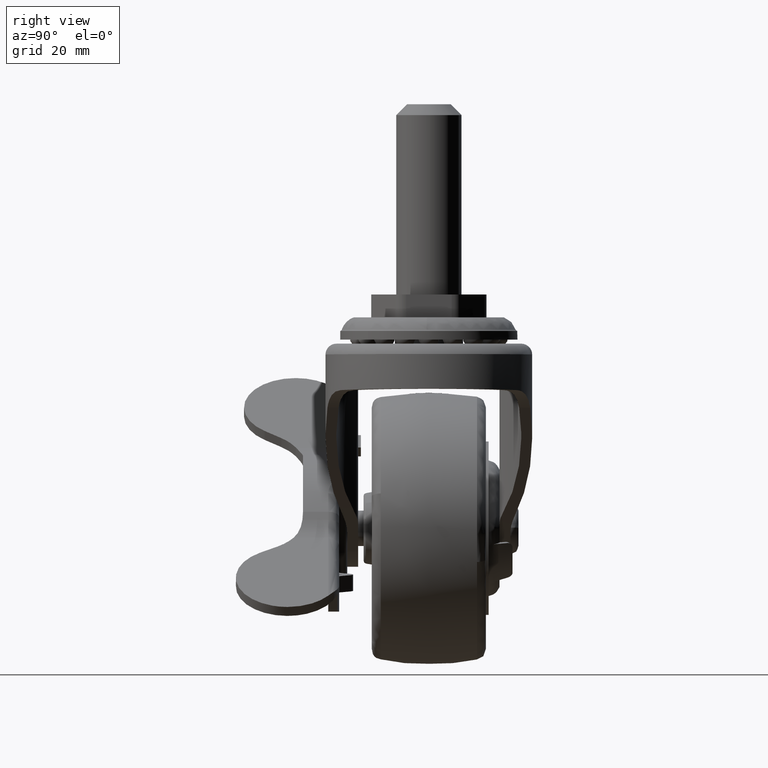
[diagram: clean part render]
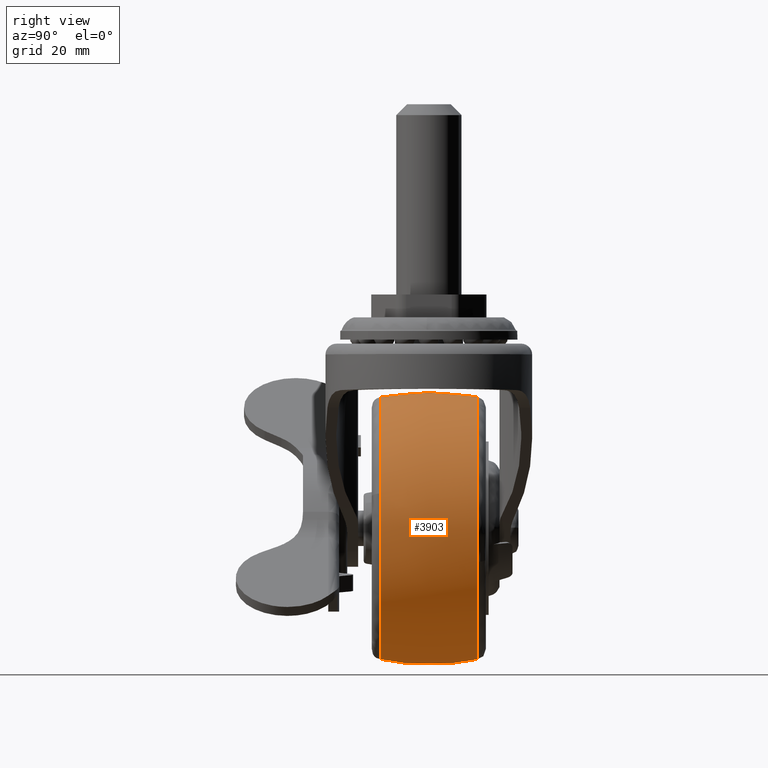
[diagram: same view with one face highlighted and labeled with its STEP entity id]
A machine part, right view. The second image highlights one B-rep face of the part: STEP entity #3903.
In plain terms, the highlighted face is a freeform B-spline surface patch.
Its self-contained STEP definition (entity closure, byte-faithful):
#2918=CARTESIAN_POINT('',(0.0,8.854156047555167,24.209794966911090));
#2919=VERTEX_POINT('',#2918);
#2936=CARTESIAN_POINT('',(22.624161666785600,8.854163295007293,-8.617506265218722));
#2937=VERTEX_POINT('',#2936);
#2938=CARTESIAN_POINT('',(22.624161666785600,8.854163295007293,-8.617506265218722));
#2939=CARTESIAN_POINT('',(23.210569897348549,8.854162949816164,-7.078731616835248));
#2940=CARTESIAN_POINT('',(23.781632398002099,8.854162472384191,-4.946888367958590));
#2941=CARTESIAN_POINT('',(24.187590928186399,8.854161755292967,-1.738187971417307));
#2942=CARTESIAN_POINT('',(24.273890034268859,8.854161060011808,1.377495455569645));
#2943=CARTESIAN_POINT('',(23.801370737152592,8.854160262262095,4.960865878064975));
#2944=CARTESIAN_POINT('',(22.683640342113250,8.854159429869460,8.709145278768519));
#2945=CARTESIAN_POINT('',(21.310396390163600,8.854158778953130,11.647663186561440));
#2946=CARTESIAN_POINT('',(19.554869142693551,8.854158178153694,14.367197077275939));
#2947=CARTESIAN_POINT('',(17.803576605142560,8.854157710976985,16.487630376303439));
#2948=CARTESIAN_POINT('',(15.420643692488859,8.854157210289607,18.767695878696671));
#2949=CARTESIAN_POINT('',(12.836212087506240,8.854156804269309,20.626366111123609));
#2950=CARTESIAN_POINT('',(9.530819152936433,8.854156431470374,22.346832661731590));
#2951=CARTESIAN_POINT('',(6.236808025049291,8.854156185536390,23.498390634917321));
#2952=CARTESIAN_POINT('',(2.866466264389453,8.854156061805130,24.103247948581970));
#2953=CARTESIAN_POINT('',(0.853841159247874,8.854156044718648,24.209801587139989));
#2954=CARTESIAN_POINT('',(0.0,8.854156047555167,24.209794966911090));
#2955=B_SPLINE_CURVE_WITH_KNOTS('',3,(#2938,#2939,#2940,#2941,#2942,#2943,#2944,#2945,#2946,#2947,#2948,#2949,#2950,#2951,#2952,#2953,#2954),.UNSPECIFIED.,.F.,.U.,(4,1,1,1,1,1,1,1,1,1,1,1,1,1,4),(0.000000030441655,4.940100022930345,6.586799404720615,9.697236326508254,14.271406719354630,17.381841161697100,21.407128963643810,23.968607178481669,27.079050260558770,29.640587552486839,33.848843533769767,36.593350707649499,40.801596595943643,44.277948844904067,46.839480648700693),.UNSPECIFIED.);
#2956=EDGE_CURVE('',#2937,#2919,#2955,.T.);
#3012=CARTESIAN_POINT('',(0.0,8.854166545756531,-24.209793078004349));
#3013=VERTEX_POINT('',#3012);
#3014=CARTESIAN_POINT('',(0.0,8.854166545756531,-24.209793078004349));
#3015=CARTESIAN_POINT('',(1.065230558824804,8.854166545761252,-24.209815701946830));
#3016=CARTESIAN_POINT('',(3.423972397751132,8.854166513260488,-24.053925209390709));
#3017=CARTESIAN_POINT('',(6.856582042393287,8.854166359129399,-23.314632096348451));
#3018=CARTESIAN_POINT('',(10.101090902239619,8.854166102182287,-22.082179851005510));
#3019=CARTESIAN_POINT('',(13.116350960653520,8.854165760915748,-20.445287706734540));
#3020=CARTESIAN_POINT('',(15.597780168761060,8.854165376706691,-18.602420851504661));
#3021=CARTESIAN_POINT('',(17.876089172291309,8.854164919715389,-16.410453121212139));
#3022=CARTESIAN_POINT('',(19.592921975826780,8.854164483250100,-14.316937925483870));
#3023=CARTESIAN_POINT('',(21.296345712938841,8.854163927971532,-11.653532239671479));
#3024=CARTESIAN_POINT('',(22.177348119370951,8.854163539613044,-9.790763084758684));
#3025=CARTESIAN_POINT('',(22.624161666785600,8.854163295007293,-8.617506265218722));
#3026=B_SPLINE_CURVE_WITH_KNOTS('',3,(#3014,#3015,#3016,#3017,#3018,#3019,#3020,#3021,#3022,#3023,#3024,#3025),.UNSPECIFIED.,.F.,.U.,(4,1,1,1,1,1,1,1,1,4),(0.000000030008625,3.195696905006013,7.076225998695346,10.500213562448760,13.581796867616070,17.348148363645429,19.744953546908601,23.054803005073719,25.451604816612530,29.217967931808701),.UNSPECIFIED.);
#3027=EDGE_CURVE('',#3013,#2937,#3026,.T.);
#3029=CARTESIAN_POINT('',(-24.047871854378428,8.854171186964070,2.795335350209184));
#3030=VERTEX_POINT('',#3029);
#3031=CARTESIAN_POINT('',(-24.047871854378428,8.854171186964070,2.795335350209184));
#3032=CARTESIAN_POINT('',(-24.170672598969610,8.854171096208699,1.739173012377101));
#3033=CARTESIAN_POINT('',(-24.282123010860580,8.854170891490963,-0.495798398120823));
#3034=CARTESIAN_POINT('',(-23.971234645595839,8.854170529052972,-4.000104140513172));
#3035=CARTESIAN_POINT('',(-23.020428787821078,8.854170075483649,-7.885298097810547));
#3036=CARTESIAN_POINT('',(-21.449909984583329,8.854169599382228,-11.453710534030540));
#3037=CARTESIAN_POINT('',(-19.505350359540412,8.854169146446081,-14.447368198761710));
#3038=CARTESIAN_POINT('',(-17.753096418728461,8.854168797950235,-16.522695160875749));
#3039=CARTESIAN_POINT('',(-15.608637736282180,8.854168416571287,-18.591822420827441));
#3040=CARTESIAN_POINT('',(-12.832307372416849,8.854167980479408,-20.669065856569510));
#3041=CARTESIAN_POINT('',(-9.074885127435428,8.854167476328064,-22.582688227919999));
#3042=CARTESIAN_POINT('',(-4.731528381452085,8.854166979929099,-23.893661538220300));
#3043=CARTESIAN_POINT('',(-1.648110505793533,8.854166686410856,-24.210040810317199));
#3044=CARTESIAN_POINT('',(0.0,8.854166545756531,-24.209793078004349));
#3045=B_SPLINE_CURVE_WITH_KNOTS('',3,(#3031,#3032,#3033,#3034,#3035,#3036,#3037,#3038,#3039,#3040,#3041,#3042,#3043,#3044),.UNSPECIFIED.,.F.,.U.,(4,1,1,1,1,1,1,1,1,1,1,4),(0.000000050354494,3.189835928459068,6.698707134197946,10.526565867136309,15.151883392004841,18.341772885132851,21.212618518764021,23.286018045957132,27.273357188577531,31.579698744170461,35.886038136260147,40.830311430089772),.UNSPECIFIED.);
#3046=EDGE_CURVE('',#3030,#3013,#3045,.T.);
#3095=CARTESIAN_POINT('',(6.669224912788078,-8.854166519641836,-23.273064930118039));
#3096=VERTEX_POINT('',#3095);
#3097=CARTESIAN_POINT('',(23.887463614547560,-8.854162321415831,3.937412292919604));
#3098=VERTEX_POINT('',#3097);
#3099=CARTESIAN_POINT('',(6.669224912788078,-8.854166519641836,-23.273064930118039));
#3100=CARTESIAN_POINT('',(8.080264711610443,-8.854166453478081,-22.868851505163541));
#3101=CARTESIAN_POINT('',(10.527824939294630,-8.854166300890665,-21.919225267015101));
#3102=CARTESIAN_POINT('',(13.618850987927830,-8.854166013785196,-20.099713202486690));
#3103=CARTESIAN_POINT('',(15.864641416455150,-8.854165739591291,-18.346769969219199));
#3104=CARTESIAN_POINT('',(17.945628110026529,-8.854165426917245,-16.337450979810889));
#3105=CARTESIAN_POINT('',(19.746513227422479,-8.854165084469177,-14.126463279844661));
#3106=CARTESIAN_POINT('',(21.362749012695389,-8.854164680419872,-11.506765847019439));
#3107=CARTESIAN_POINT('',(22.702631252370761,-8.854164238643284,-8.633228437494205));
#3108=CARTESIAN_POINT('',(23.658817114511450,-8.854163760016775,-5.509296474596037));
#3109=CARTESIAN_POINT('',(24.162313149790108,-8.854163267651057,-2.285317139693413));
#3110=CARTESIAN_POINT('',(24.263032693540019,-8.854162798977562,0.791706131691230));
#3111=CARTESIAN_POINT('',(24.066550868320409,-8.854162486148672,2.851236399399517));
#3112=CARTESIAN_POINT('',(23.887463614547560,-8.854162321415831,3.937412292919604));
#3113=B_SPLINE_CURVE_WITH_KNOTS('',3,(#3099,#3100,#3101,#3102,#3103,#3104,#3105,#3106,#3107,#3108,#3109,#3110,#3111,#3112),.UNSPECIFIED.,.F.,.U.,(4,1,1,1,1,1,1,1,1,1,1,4),(0.000000045466521,4.403368261571281,7.843531434918518,10.733255525369829,12.934958475661400,16.512731122614490,19.264794149923109,22.154518466834560,26.007498810574390,29.034837871654581,31.924569960631359,35.227088411384187),.UNSPECIFIED.);
#3114=EDGE_CURVE('',#3096,#3098,#3113,.T.);
#3196=CARTESIAN_POINT('',(0.0,-8.854166661830259,-24.209793723120299));
#3197=VERTEX_POINT('',#3196);
#3198=CARTESIAN_POINT('',(0.0,-8.854166661830259,-24.209793723120299));
#3199=CARTESIAN_POINT('',(1.055719922121602,-8.854166661835818,-24.209830481906369));
#3200=CARTESIAN_POINT('',(3.307906369467236,-8.854166639431519,-24.062231758162181));
#3201=CARTESIAN_POINT('',(5.519055733522833,-8.854166569683736,-23.602738201434160));
#3202=CARTESIAN_POINT('',(6.669224912788078,-8.854166519641836,-23.273064930118039));
#3203=B_SPLINE_CURVE_WITH_KNOTS('',3,(#3198,#3199,#3200,#3201,#3202),.UNSPECIFIED.,.F.,.U.,(4,1,4),(1.399075E-009,3.167157438084686,6.756599511746928),.UNSPECIFIED.);
#3204=EDGE_CURVE('',#3197,#3096,#3203,.T.);
#3273=CARTESIAN_POINT('',(0.0,-8.854159093551591,24.209794918354810));
#3274=VERTEX_POINT('',#3273);
#3275=CARTESIAN_POINT('',(23.887463614547560,-8.854162321415831,3.937412292919604));
#3276=CARTESIAN_POINT('',(23.714331435484869,-8.854162154130005,4.988039594110561));
#3277=CARTESIAN_POINT('',(23.269515118372290,-8.854161850784280,6.893182049004223));
#3278=CARTESIAN_POINT('',(22.293634059204109,-8.854161425481832,9.564264774376580));
#3279=CARTESIAN_POINT('',(21.089733564179149,-8.854161038814933,11.992700556155819));
#3280=CARTESIAN_POINT('',(19.523767041050750,-8.854160652317917,14.420068843163090));
#3281=CARTESIAN_POINT('',(17.355534950661671,-8.854160239624358,17.011962481069141));
#3282=CARTESIAN_POINT('',(14.417336588596170,-8.854159826824445,19.604524433791390));
#3283=CARTESIAN_POINT('',(11.183181152936561,-8.854159513209991,21.574158415945000));
#3284=CARTESIAN_POINT('',(8.316117897857767,-8.854159320988424,22.781394087788762));
#3285=CARTESIAN_POINT('',(5.640707197939554,-8.854159190658411,23.599921455952352));
#3286=CARTESIAN_POINT('',(2.928207936060139,-8.854159111429206,24.097515357870080));
#3287=CARTESIAN_POINT('',(0.887330153810755,-8.854159093550646,24.209802879716541));
#3288=CARTESIAN_POINT('',(0.0,-8.854159093551591,24.209794918354810));
#3289=B_SPLINE_CURVE_WITH_KNOTS('',3,(#3275,#3276,#3277,#3278,#3279,#3280,#3281,#3282,#3283,#3284,#3285,#3286,#3287,#3288),.UNSPECIFIED.,.F.,.U.,(4,1,1,1,1,1,1,1,1,1,1,4),(0.000000042991211,3.194386848198935,5.856409578603230,8.518430166385240,11.313546380200460,14.507977339279590,18.634053912555402,23.026370799121530,25.821490944766300,27.951100353148892,31.411721322118961,34.073719042052538),.UNSPECIFIED.);
#3290=EDGE_CURVE('',#3098,#3274,#3289,.T.);
#3292=CARTESIAN_POINT('',(-24.047873002769229,-8.854166599698012,2.795335503187974));
#3293=VERTEX_POINT('',#3292);
#3311=CARTESIAN_POINT('',(-24.047873002769229,-8.854166599698012,2.795335503187974));
#3312=CARTESIAN_POINT('',(-24.152243001408308,-8.854166603346213,1.897594308390354));
#3313=CARTESIAN_POINT('',(-24.269829119701338,-8.854166611143731,-0.069055098579231));
#3314=CARTESIAN_POINT('',(-24.081235035818430,-8.854166622514049,-3.100147531113118));
#3315=CARTESIAN_POINT('',(-23.495982277643090,-8.854166632992527,-6.080180976419203));
#3316=CARTESIAN_POINT('',(-22.602951755468581,-8.854166641979370,-8.813369949624573));
#3317=CARTESIAN_POINT('',(-21.255569654671518,-8.854166651028329,-11.768873342434791));
#3318=CARTESIAN_POINT('',(-19.548978218237721,-8.854166658256396,-14.415440244841170));
#3319=CARTESIAN_POINT('',(-17.325572327360799,-8.854166664325819,-16.996523314787190));
#3320=CARTESIAN_POINT('',(-14.722590990938700,-8.854166668903776,-19.363246404235369));
#3321=CARTESIAN_POINT('',(-11.709786488413229,-8.854166671079964,-21.293802980198109));
#3322=CARTESIAN_POINT('',(-8.697972290915846,-8.854166671019568,-22.644467695194539));
#3323=CARTESIAN_POINT('',(-6.316874176691517,-8.854166669823885,-23.414915418081879));
#3324=CARTESIAN_POINT('',(-3.402484317513999,-8.854166667127773,-24.038595511007490));
#3325=CARTESIAN_POINT('',(-1.329115145099767,-8.854166664158187,-24.209897639431439));
#3326=CARTESIAN_POINT('',(0.0,-8.854166661830259,-24.209793723120299));
#3327=B_SPLINE_CURVE_WITH_KNOTS('',3,(#3311,#3312,#3313,#3314,#3315,#3316,#3317,#3318,#3319,#3320,#3321,#3322,#3323,#3324,#3325,#3326),.UNSPECIFIED.,.F.,.U.,(4,1,1,1,1,1,1,1,1,1,1,1,1,4),(0.000000050307058,2.711367359254098,5.901237855150171,9.091124246523535,11.802513738965580,14.513903224211170,18.820231411379559,21.212619332740019,24.721464086611899,29.346782325835001,31.898684558553420,34.610077732655839,36.842985446317869,40.830312996886903),.UNSPECIFIED.);
#3328=EDGE_CURVE('',#3293,#3197,#3327,.T.);
#3824=CARTESIAN_POINT('',(-23.880277738022151,-9.745417081588716,2.775883382903433));
#3825=CARTESIAN_POINT('',(-24.832791040827093,-4.919886659880164,2.886605120659473));
#3826=CARTESIAN_POINT('',(-24.832791040827100,0.0,2.886605120659473));
#3827=CARTESIAN_POINT('',(-24.832791040827097,4.919888229607728,2.886605120659474));
#3828=CARTESIAN_POINT('',(-23.880277136037193,9.745420131305941,2.775883312927695));
#3829=CARTESIAN_POINT('',(-24.041073050106466,-9.745417081588711,1.392598791340626));
#3830=CARTESIAN_POINT('',(-25.000000000000004,-4.919886659880163,1.448145418091538));
#3831=CARTESIAN_POINT('',(-25.0,0.0,1.448145418091539));
#3832=CARTESIAN_POINT('',(-25.000000000000004,4.919888229607728,1.448145418091538));
#3833=CARTESIAN_POINT('',(-24.041072444068114,9.745420131305943,1.392598756235359));
#3834=CARTESIAN_POINT('',(-24.041073050106469,-9.745417081588712,0.0));
#3835=CARTESIAN_POINT('',(-25.000000000000007,-4.919886659880164,0.0));
#3836=CARTESIAN_POINT('',(-25.0,0.0,0.0));
#3837=CARTESIAN_POINT('',(-25.0,4.919888229607729,0.0));
#3838=CARTESIAN_POINT('',(-24.041072444068117,9.745420131305941,0.0));
#3839=CARTESIAN_POINT('',(-24.041073050106473,-9.745417081588712,-24.041073050106473));
#3840=CARTESIAN_POINT('',(-24.999999999999996,-4.919886659880164,-24.999999999999996));
#3841=CARTESIAN_POINT('',(-25.0,0.0,-25.0));
#3842=CARTESIAN_POINT('',(-25.000000000000007,4.919888229607730,-25.000000000000007));
#3843=CARTESIAN_POINT('',(-24.041072444068121,9.745420131305941,-24.041072444068121));
#3844=CARTESIAN_POINT('',(0.0,-9.745417081588712,-24.041073050106469));
#3845=CARTESIAN_POINT('',(0.0,-4.919886659880164,-25.000000000000007));
#3846=CARTESIAN_POINT('',(0.0,0.0,-25.0));
#3847=CARTESIAN_POINT('',(0.0,4.919888229607729,-25.0));
#3848=CARTESIAN_POINT('',(0.0,9.745420131305941,-24.041072444068117));
#3849=CARTESIAN_POINT('',(24.041073050106473,-9.745417081588712,-24.041073050106473));
#3850=CARTESIAN_POINT('',(24.999999999999996,-4.919886659880164,-24.999999999999996));
#3851=CARTESIAN_POINT('',(25.0,0.0,-25.0));
#3852=CARTESIAN_POINT('',(25.000000000000007,4.919888229607730,-25.000000000000007));
#3853=CARTESIAN_POINT('',(24.041072444068121,9.745420131305941,-24.041072444068121));
#3854=CARTESIAN_POINT('',(24.041073050106469,-9.745417081588712,0.0));
#3855=CARTESIAN_POINT('',(25.000000000000007,-4.919886659880164,0.0));
#3856=CARTESIAN_POINT('',(25.0,0.0,0.0));
#3857=CARTESIAN_POINT('',(25.0,4.919888229607729,0.0));
#3858=CARTESIAN_POINT('',(24.041072444068117,9.745420131305941,0.0));
#3859=CARTESIAN_POINT('',(24.041073050106473,-9.745417081588712,24.041073050106473));
#3860=CARTESIAN_POINT('',(24.999999999999996,-4.919886659880164,24.999999999999996));
#3861=CARTESIAN_POINT('',(25.0,0.0,25.0));
#3862=CARTESIAN_POINT('',(25.000000000000007,4.919888229607730,25.000000000000007));
#3863=CARTESIAN_POINT('',(24.041072444068121,9.745420131305941,24.041072444068121));
#3864=CARTESIAN_POINT('',(0.0,-9.745417081588712,24.041073050106469));
#3865=CARTESIAN_POINT('',(0.0,-4.919886659880164,25.000000000000007));
#3866=CARTESIAN_POINT('',(0.0,0.0,25.0));
#3867=CARTESIAN_POINT('',(0.0,4.919888229607729,25.0));
#3868=CARTESIAN_POINT('',(0.0,9.745420131305941,24.041072444068117));
#3876=(BOUNDED_SURFACE()B_SPLINE_SURFACE(2,2,((#3824,#3829,#3834,#3839,#3844,#3849,#3854,#3859,#3864),(#3825,#3830,#3835,#3840,#3845,#3850,#3855,#3860,#3865),(#3826,#3831,#3836,#3841,#3846,#3851,#3856,#3861,#3866),(#3827,#3832,#3837,#3842,#3847,#3852,#3857,#3862,#3867),(#3828,#3833,#3838,#3843,#3848,#3853,#3858,#3863,#3868)),.UNSPECIFIED.,.F.,.F.,.U.)B_SPLINE_SURFACE_WITH_KNOTS((3,2,3),(3,2,2,2,3),(0.0,10.002360886167780,20.004724881685629),(0.0,3.313707807691297,44.735064045000797,86.156420282310307,127.577776519619800),.UNSPECIFIED.)GEOMETRIC_REPRESENTATION_ITEM()RATIONAL_B_SPLINE_SURFACE(((0.917150804589968,0.936015900174770,0.958474346407116,0.677743709937816,0.958474346407116,0.677743709937816,0.958474346407116,0.677743709937816,0.958474346407116),(0.932305343039136,0.951482155971790,0.974311694270167,0.688942406007789,0.974311694270167,0.688942406007789,0.974311694270167,0.688942406007789,0.974311694270167),(0.956886126402807,0.976568547383107,1.0,0.707106781186548,1.0,0.707106781186548,1.0,0.707106781186548,1.0),(0.932305335397914,0.951482148173394,0.974311686284658,0.688942400361182,0.974311686284658,0.688942400361182,0.974311686284658,0.688942400361182,0.974311686284658),(0.917150795168040,0.936015890559041,0.958474336560670,0.677743702975327,0.958474336560670,0.677743702975327,0.958474336560670,0.677743702975327,0.958474336560670)))REPRESENTATION_ITEM('')SURFACE());
#3877=ORIENTED_EDGE('',*,*,#3046,.T.);
#3878=ORIENTED_EDGE('',*,*,#3027,.T.);
#3879=ORIENTED_EDGE('',*,*,#2956,.T.);
#3880=CARTESIAN_POINT('',(0.0,-8.854159093551591,24.209794918354810));
#3881=CARTESIAN_POINT('',(0.0,-5.842802804092548,24.751976920912639));
#3882=CARTESIAN_POINT('',(0.0,0.094191533075800,25.264497782381749));
#3883=CARTESIAN_POINT('',(0.0,6.025296848827347,24.719042274830571));
#3884=CARTESIAN_POINT('',(0.0,8.854156047555167,24.209794966911090));
#3885=B_SPLINE_CURVE_WITH_KNOTS('',3,(#3880,#3881,#3882,#3883,#3884),.UNSPECIFIED.,.F.,.U.,(4,1,4),(1.057526E-009,9.179267440419354,17.802219825190711),.UNSPECIFIED.);
#3886=EDGE_CURVE('',#3274,#2919,#3885,.T.);
#3887=ORIENTED_EDGE('',*,*,#3886,.F.);
#3888=ORIENTED_EDGE('',*,*,#3290,.F.);
#3889=ORIENTED_EDGE('',*,*,#3114,.F.);
#3890=ORIENTED_EDGE('',*,*,#3204,.F.);
#3891=ORIENTED_EDGE('',*,*,#3328,.F.);
#3892=CARTESIAN_POINT('',(-24.047873002769229,-8.854166599698012,2.795335503187974));
#3893=CARTESIAN_POINT('',(-24.423076126964599,-6.755320963126891,2.838949748295382));
#3894=CARTESIAN_POINT('',(-24.790500972820990,-3.524596190503609,2.881659831892816));
#3895=CARTESIAN_POINT('',(-24.888964507644459,2.411964311414546,2.893105393619723));
#3896=CARTESIAN_POINT('',(-24.521061878365551,6.207809643628329,2.850339763934348));
#3897=CARTESIAN_POINT('',(-24.047871854378428,8.854171186964070,2.795335350209184));
#3898=B_SPLINE_CURVE_WITH_KNOTS('',3,(#3892,#3893,#3894,#3895,#3896,#3897),.UNSPECIFIED.,.F.,.U.,(4,1,1,4),(1.056510E-009,6.397685246372728,9.735596706617587,17.802242892500811),.UNSPECIFIED.);
#3899=EDGE_CURVE('',#3293,#3030,#3898,.T.);
#3900=ORIENTED_EDGE('',*,*,#3899,.T.);
#3901=EDGE_LOOP('',(#3877,#3878,#3879,#3887,#3888,#3889,#3890,#3891,#3900));
#3902=FACE_OUTER_BOUND('',#3901,.T.);
#3903=ADVANCED_FACE('',(#3902),#3876,.T.);